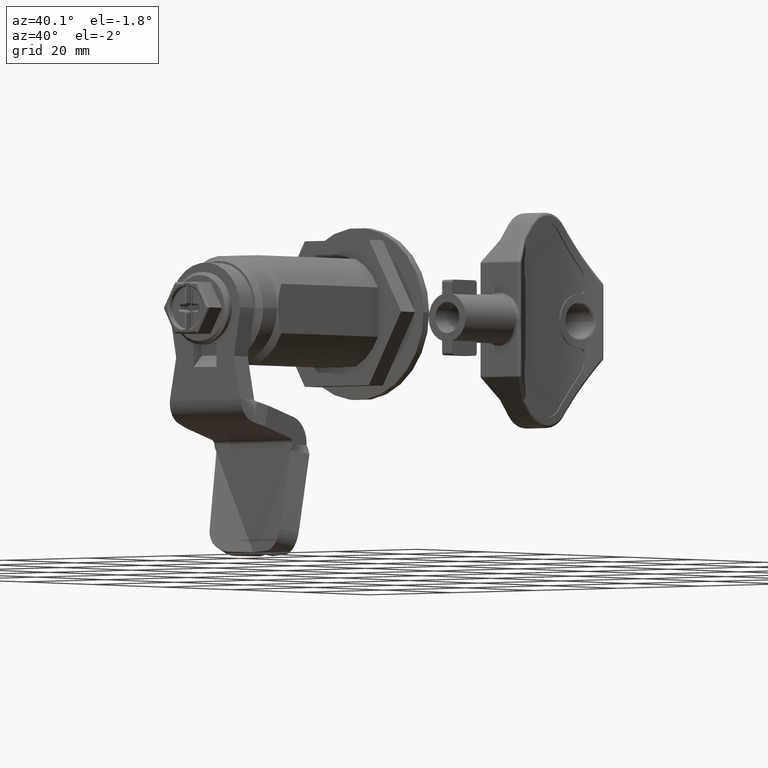
[diagram: clean part render]
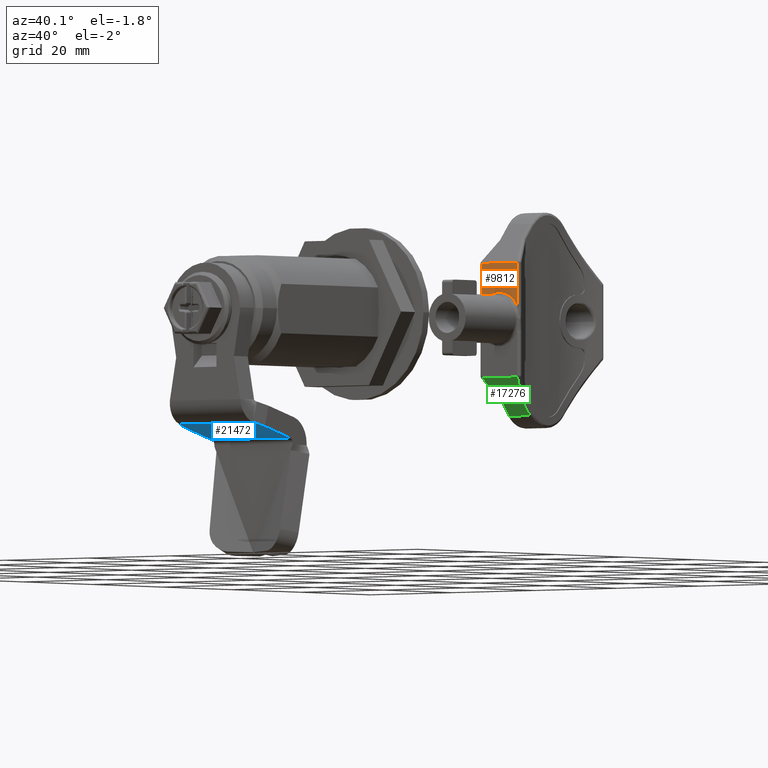
[diagram: same view with three faces highlighted in distinct colors, each labeled with its STEP entity id]
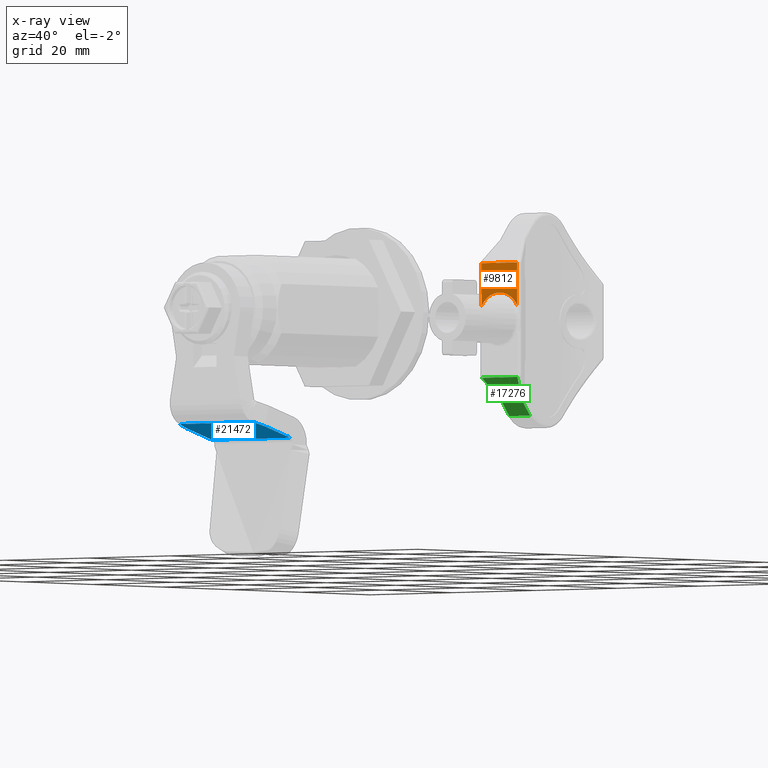
[diagram: x-ray of the same camera — body ghosted, the three highlighted faces saturated]
A machine part, auxiliary view with three faces highlighted in distinct colors.
The next image is the same camera in x-ray (body ghosted, the three faces saturated) — at least one of them is partly hidden behind the body in this view.
Their STEP definitions:

[orange] entity #9812 — the highlighted planar face has unit normal (0, 1, 0).
#447 = ORIENTED_EDGE ( 'NONE', *, *, #18263, .F. ) ;
#849 = CARTESIAN_POINT ( 'NONE',  ( 11.68431494625915867, 90.46760989057965219, 6.226313388720265962 ) ) ;
#1070 = CARTESIAN_POINT ( 'NONE',  ( 14.30160485356757682, 90.46761590836968026, 4.038324185251780385 ) ) ;
#1113 = CARTESIAN_POINT ( 'NONE',  ( 12.94196387228142697, 90.46760989057966640, 5.549108788813547299 ) ) ;
#1248 = CARTESIAN_POINT ( 'NONE',  ( 12.09002494346922063, 90.46760989057962377, 6.060991648164399948 ) ) ;
#1369 = CARTESIAN_POINT ( 'NONE',  ( 13.44264506776045742, 90.46760989057965219, 5.120632281888396697 ) ) ;
#1764 = DIRECTION ( 'NONE',  ( -2.327695422764130721E-15, -1.224632499947480388E-16, 1.000000000000000000 ) ) ;
#3087 = DIRECTION ( 'NONE',  ( 1.000000000000000000, -3.462277103873345949E-22, 2.327695422764130721E-15 ) ) ;
#3273 = CARTESIAN_POINT ( 'NONE',  ( 10.20777526145559833, 90.46760989057965219, 6.499977712199124014 ) ) ;
#3539 = CARTESIAN_POINT ( 'NONE',  ( 6.391117997786375682, 90.46760989057965219, 4.967491468924532860 ) ) ;
#5173 = CARTESIAN_POINT ( 'NONE',  ( 12.66688050575999114, 90.46760989057960956, 5.731269799322173952 ) ) ;
#5303 = CARTESIAN_POINT ( 'NONE',  ( 8.362221852326992888, 90.46760989057966640, 6.228687451887533477 ) ) ;
#5629 = ORIENTED_EDGE ( 'NONE', *, *, #6614, .F. ) ;
#5961 = CARTESIAN_POINT ( 'NONE',  ( 5.686060587660782595, 90.46760989057969482, -22.50000000000000355 ) ) ;
#6614 = EDGE_CURVE ( 'NONE', #11337, #11602, #21394, .T. ) ;
#7042 = FACE_OUTER_BOUND ( 'NONE', #24486, .T. ) ;
#7045 = CARTESIAN_POINT ( 'NONE',  ( 6.426871535496623267, 90.46760989057963798, 5.004270630835435441 ) ) ;
#7175 = CARTESIAN_POINT ( 'NONE',  ( 5.973780260749663285, 90.46760989057965219, 4.486607665623752794 ) ) ;
#7705 = VERTEX_POINT ( 'NONE', #15466 ) ;
#7716 = VERTEX_POINT ( 'NONE', #1070 ) ;
#8168 = CARTESIAN_POINT ( 'NONE',  ( 14.30160486092668570, 90.46760989057969482, 11.97943889045009591 ) ) ;
#8714 = CARTESIAN_POINT ( 'NONE',  ( 14.30160486092677807, 90.46760989057969482, -22.49999999999992539 ) ) ;
#9055 = CARTESIAN_POINT ( 'NONE',  ( 7.705377674659893650, 90.46760989057962377, 5.951044967326062363 ) ) ;
#9094 = LINE ( 'NONE', #8714, #12963 ) ;
#9317 = CARTESIAN_POINT ( 'NONE',  ( 8.001969613871144915, 90.46760989057962377, 6.095567325610470100 ) ) ;
#9453 = CARTESIAN_POINT ( 'NONE',  ( 6.210621589031656953, 90.46760989057965219, 4.772352177383944571 ) ) ;
#9454 = B_SPLINE_CURVE_WITH_KNOTS ( 'NONE', 3,
 ( #17528, #23722, #7175, #9453, #19288, #3539, #7045, #21840, #15379, #9055, #9317, #5303, #23996, #17254, #21702, #23593, #25747, #3273, #9586, #13218, #21566, #17650, #11457, #849, #1248, #5173, #1113, #25475, #26006, #1369, #19684, #19545, #13746, #25871 ),
 .UNSPECIFIED., .F., .F.,
 ( 4, 1, 1, 2, 2, 2, 1, 1, 2, 2, 2, 1, 1, 2, 2, 2, 1, 1, 2, 2, 4 ),
 ( 0.0000000000000000000, 0.06249999999999902855, 0.09374999999999844569, 0.1093749999999981543, 0.1249999999999978489, 0.2499999999999960032, 0.3124999999999952260, 0.3437499999999948375, 0.3593749999999948375, 0.3749999999999948930, 0.4999999999999954481, 0.5624999999999958922, 0.5937499999999964473, 0.6093749999999967804, 0.6249999999999968914, 0.7499999999999982236, 0.8124999999999991118, 0.8437499999999993339, 0.8593749999999994449, 0.8749999999999994449, 1.000000000000000000 ),
 .UNSPECIFIED. ) ;
#9586 = CARTESIAN_POINT ( 'NONE',  ( 10.52596634781067131, 90.46760989057960956, 6.479729507598323224 ) ) ;
#9812 = ADVANCED_FACE ( 'NONE', ( #7042 ), #15375, .F. ) ;
#10907 = EDGE_CURVE ( 'NONE', #7705, #7716, #9454, .T. ) ;
#11148 = CARTESIAN_POINT ( 'NONE',  ( 4.850975581436654416, 90.46760989057969482, 11.97943889045001775 ) ) ;
#11337 = VERTEX_POINT ( 'NONE', #20449 ) ;
#11457 = CARTESIAN_POINT ( 'NONE',  ( 11.20212952403401196, 90.46760989057965219, 6.352127427658723846 ) ) ;
#11602 = VERTEX_POINT ( 'NONE', #8168 ) ;
#12963 = VECTOR ( 'NONE', #14890, 1000.000000000000000 ) ;
#13012 = VECTOR ( 'NONE', #1764, 1000.000000000000000 ) ;
#13214 = DIRECTION ( 'NONE',  ( -2.327695422764130721E-15, -1.224632499947480388E-16, 1.000000000000000000 ) ) ;
#13218 = CARTESIAN_POINT ( 'NONE',  ( 10.89242433167403590, 90.46760989057963798, 6.420730749656636149 ) ) ;
#13746 = CARTESIAN_POINT ( 'NONE',  ( 14.08439146608704995, 90.46760989057968061, 4.406782454919608405 ) ) ;
#14890 = DIRECTION ( 'NONE',  ( 2.327695422764130721E-15, 1.224632499947480388E-16, -1.000000000000000000 ) ) ;
#15237 = DIRECTION ( 'NONE',  ( 3.462277103172841594E-22, 1.000000000000000000, 1.224632499947480388E-16 ) ) ;
#15375 = PLANE ( 'NONE',  #19228 ) ;
#15379 = CARTESIAN_POINT ( 'NONE',  ( 7.128454721238591141, 90.46760989057965219, 5.621441060218487884 ) ) ;
#15466 = CARTESIAN_POINT ( 'NONE',  ( 5.686063088423678913, 90.46761503197578236, 4.038326747129302952 ) ) ;
#17254 = CARTESIAN_POINT ( 'NONE',  ( 8.625303957400044297, 90.46760989057960956, 6.309408543055338825 ) ) ;
#17523 = CARTESIAN_POINT ( 'NONE',  ( 4.850975581436748563, 90.46760989057963798, -22.50000000000000355 ) ) ;
#17528 = CARTESIAN_POINT ( 'NONE',  ( 5.686063088423678913, 90.46761503197578236, 4.038326747129302952 ) ) ;
#17650 = CARTESIAN_POINT ( 'NONE',  ( 11.15225136410743012, 90.46760989057965219, 6.364269982227827249 ) ) ;
#18263 = EDGE_CURVE ( 'NONE', #7705, #11337, #21948, .T. ) ;
#19228 = AXIS2_PLACEMENT_3D ( 'NONE', #17523, #15237, #13214 ) ;
#19288 = CARTESIAN_POINT ( 'NONE',  ( 6.318120090890809948, 90.46760989057963798, 4.890068500389142869 ) ) ;
#19545 = CARTESIAN_POINT ( 'NONE',  ( 13.82437355441803284, 90.46760989057965219, 4.741784238782592809 ) ) ;
#19684 = CARTESIAN_POINT ( 'NONE',  ( 13.48369832235735011, 90.46760989057965219, 5.081026253022776551 ) ) ;
#20449 = CARTESIAN_POINT ( 'NONE',  ( 5.686060587660689336, 90.46760989057969482, 11.97943889045001953 ) ) ;
#20930 = VECTOR ( 'NONE', #3087, 1000.000000000000000 ) ;
#21213 = ORIENTED_EDGE ( 'NONE', *, *, #10907, .T. ) ;
#21394 = LINE ( 'NONE', #11148, #20930 ) ;
#21436 = ORIENTED_EDGE ( 'NONE', *, *, #26309, .F. ) ;
#21566 = CARTESIAN_POINT ( 'NONE',  ( 11.04845669256885721, 90.46760989057963798, 6.387865027844324750 ) ) ;
#21702 = CARTESIAN_POINT ( 'NONE',  ( 8.680203947695259714, 90.46760989057963798, 6.324654824810351350 ) ) ;
#21840 = CARTESIAN_POINT ( 'NONE',  ( 6.780056084522220416, 90.46760989057960956, 5.355828058636858735 ) ) ;
#21948 = LINE ( 'NONE', #5961, #13012 ) ;
#23593 = CARTESIAN_POINT ( 'NONE',  ( 9.146005091739745296, 90.46760989057963798, 6.446093854670067458 ) ) ;
#23722 = CARTESIAN_POINT ( 'NONE',  ( 5.794753709746856885, 90.46760989057966640, 4.222701355975442716 ) ) ;
#23996 = CARTESIAN_POINT ( 'NONE',  ( 8.519664592245794310, 90.46760989057965219, 6.278134086351685461 ) ) ;
#24486 = EDGE_LOOP ( 'NONE', ( #21436, #5629, #447, #21213 ) ) ;
#25475 = CARTESIAN_POINT ( 'NONE',  ( 13.23954174096450842, 90.46760989057962377, 5.306312459233645029 ) ) ;
#25747 = CARTESIAN_POINT ( 'NONE',  ( 9.565947431353935215, 90.46760989057965219, 6.500044575601775065 ) ) ;
#25871 = CARTESIAN_POINT ( 'NONE',  ( 14.30160485356757682, 90.46761590836968026, 4.038324185251780385 ) ) ;
#26006 = CARTESIAN_POINT ( 'NONE',  ( 13.36207095777327503, 90.46760989057963798, 5.195769357130872734 ) ) ;
#26309 = EDGE_CURVE ( 'NONE', #11602, #7716, #9094, .T. ) ;

[blue] entity #21472 — the highlighted planar face has unit normal (0, -0.2588, -0.9659).
#1719 = CARTESIAN_POINT ( 'NONE',  ( 19.49383272429362535, 11.62519137588309626, -20.47728645089577881 ) ) ;
#2006 = CARTESIAN_POINT ( 'NONE',  ( 0.4938327242937096684, -9.625176802480012839, -14.78326745864001701 ) ) ;
#2561 = CARTESIAN_POINT ( 'NONE',  ( 18.95349915549838471, 8.911196201548809981, -19.75007363567146967 ) ) ;
#3351 = CARTESIAN_POINT ( 'NONE',  ( 9.993832724293662650, -9.625176802480016391, -14.78326745864001346 ) ) ;
#4095 = ORIENTED_EDGE ( 'NONE', *, *, #4387, .F. ) ;
#4387 = EDGE_CURVE ( 'NONE', #10294, #25728, #12063, .T. ) ;
#4847 = PLANE ( 'NONE',  #26337 ) ;
#6128 = CARTESIAN_POINT ( 'NONE',  ( 19.49383272429362890, 18.90852850364103332, -22.42885075248121751 ) ) ;
#6338 = EDGE_LOOP ( 'NONE', ( #7285, #10910, #23370, #10460, #4095, #12309 ) ) ;
#6343 = LINE ( 'NONE', #10622, #25487 ) ;
#7285 = ORIENTED_EDGE ( 'NONE', *, *, #13803, .T. ) ;
#7371 = DIRECTION ( 'NONE',  ( 2.881877549567474122E-16, -0.2588190451024932615, -0.9659258262890756397 ) ) ;
#8175 = CARTESIAN_POINT ( 'NONE',  ( 0.4938327242937166073, 8.911196201548490237, -19.75007363567181073 ) ) ;
#8199 = CARTESIAN_POINT ( 'NONE',  ( 0.4938327242937183836, 11.62519137588314422, -20.47728645089581434 ) ) ;
#8602 = EDGE_CURVE ( 'NONE', #10294, #11378, #24396, .T. ) ;
#9525 = VERTEX_POINT ( 'NONE', #6128 ) ;
#9923 = DIRECTION ( 'NONE',  ( -0.1888473936499765471, -0.9485453887210086865, 0.2541619708920305198 ) ) ;
#10196 = EDGE_CURVE ( 'NONE', #20834, #9525, #24800, .T. ) ;
#10294 = VERTEX_POINT ( 'NONE', #13052 ) ;
#10460 = ORIENTED_EDGE ( 'NONE', *, *, #24710, .T. ) ;
#10462 = VECTOR ( 'NONE', #9923, 1000.000000000000000 ) ;
#10622 = CARTESIAN_POINT ( 'NONE',  ( 19.49383272429361469, -9.625176802480019944, -14.78326745864000991 ) ) ;
#10910 = ORIENTED_EDGE ( 'NONE', *, *, #10196, .T. ) ;
#11378 = VERTEX_POINT ( 'NONE', #8199 ) ;
#12063 = LINE ( 'NONE', #8175, #20815 ) ;
#12222 = LINE ( 'NONE', #2006, #16246 ) ;
#12309 = ORIENTED_EDGE ( 'NONE', *, *, #8602, .T. ) ;
#13052 = CARTESIAN_POINT ( 'NONE',  ( 1.034166293088620625, 8.911196201551820906, -19.75007363567247509 ) ) ;
#13208 = VERTEX_POINT ( 'NONE', #24118 ) ;
#13803 = EDGE_CURVE ( 'NONE', #11378, #20834, #12222, .T. ) ;
#14556 = DIRECTION ( 'NONE',  ( 1.000000000000000000, -3.317293887944513556E-16, 3.872405400257100208E-16 ) ) ;
#15804 = VECTOR ( 'NONE', #19939, 1000.000000000000114 ) ;
#16246 = VECTOR ( 'NONE', #26630, 1000.000000000000114 ) ;
#18267 = DIRECTION ( 'NONE',  ( 1.000000000000000000, -3.317293887944513556E-16, 3.872405400257100208E-16 ) ) ;
#18835 = DIRECTION ( 'NONE',  ( -4.206512107700798240E-16, -0.9659258262890756397, 0.2588190451024932615 ) ) ;
#19939 = DIRECTION ( 'NONE',  ( -0.1888473936499756867, 0.9485453887210087975, -0.2541619708920308529 ) ) ;
#20163 = LINE ( 'NONE', #1719, #10462 ) ;
#20527 = VECTOR ( 'NONE', #14556, 1000.000000000000000 ) ;
#20581 = CARTESIAN_POINT ( 'NONE',  ( 0.4938327242937218253, 18.90852850364104043, -22.42885075248122462 ) ) ;
#20613 = CARTESIAN_POINT ( 'NONE',  ( 9.993832724293675085, 18.90852850363959448, -22.42885075248152660 ) ) ;
#20815 = VECTOR ( 'NONE', #18267, 1000.000000000000000 ) ;
#20834 = VERTEX_POINT ( 'NONE', #20581 ) ;
#21472 = ADVANCED_FACE ( 'NONE', ( #23534 ), #4847, .T. ) ;
#21832 = CARTESIAN_POINT ( 'NONE',  ( 1.034166293088620625, 8.911196201548705176, -19.75007363567100427 ) ) ;
#23370 = ORIENTED_EDGE ( 'NONE', *, *, #24537, .T. ) ;
#23534 = FACE_OUTER_BOUND ( 'NONE', #6338, .T. ) ;
#24118 = CARTESIAN_POINT ( 'NONE',  ( 19.49383272429373548, 11.62519137588310159, -20.47728645089577881 ) ) ;
#24396 = LINE ( 'NONE', #21832, #15804 ) ;
#24537 = EDGE_CURVE ( 'NONE', #9525, #13208, #6343, .T. ) ;
#24710 = EDGE_CURVE ( 'NONE', #13208, #25728, #20163, .T. ) ;
#24800 = LINE ( 'NONE', #20613, #20527 ) ;
#25487 = VECTOR ( 'NONE', #18835, 1000.000000000000114 ) ;
#25689 = DIRECTION ( 'NONE',  ( 4.206512107700798240E-16, 0.9659258262890756397, -0.2588190451024932615 ) ) ;
#25728 = VERTEX_POINT ( 'NONE', #2561 ) ;
#26337 = AXIS2_PLACEMENT_3D ( 'NONE', #3351, #7371, #25689 ) ;
#26630 = DIRECTION ( 'NONE',  ( 4.206512107700798240E-16, 0.9659258262890756397, -0.2588190451024932615 ) ) ;

[green] entity #17276 — the highlighted planar face has unit normal (-0, 0.7732, 0.6341).
#65 = CARTESIAN_POINT ( 'NONE',  ( 7.493832724293708836, 96.32815509393418552, -16.30466282210139184 ) ) ;
#740 = DIRECTION ( 'NONE',  ( 1.799873168592088012E-15, 0.6341104703502870032, -0.7732424661075838479 ) ) ;
#2182 = DIRECTION ( 'NONE',  ( 1.000000000000000000, -3.462277103873345949E-22, 2.327695422764130721E-15 ) ) ;
#2592 = CARTESIAN_POINT ( 'NONE',  ( 12.49383272429363778, 93.95549664590643602, -13.41141258359337307 ) ) ;
#2999 = VERTEX_POINT ( 'NONE', #5627 ) ;
#3225 = FACE_OUTER_BOUND ( 'NONE', #5241, .T. ) ;
#3353 = ORIENTED_EDGE ( 'NONE', *, *, #23066, .F. ) ;
#3772 = LINE ( 'NONE', #7388, #5508 ) ;
#4227 = CARTESIAN_POINT ( 'NONE',  ( 18.74859956786572468, 90.58098865752320705, -9.296494125622118077 ) ) ;
#5241 = EDGE_LOOP ( 'NONE', ( #19723, #21344, #5808, #20344, #3353, #11133 ) ) ;
#5445 = EDGE_CURVE ( 'NONE', #18250, #2999, #14536, .T. ) ;
#5508 = VECTOR ( 'NONE', #20180, 1000.000000000000114 ) ;
#5627 = CARTESIAN_POINT ( 'NONE',  ( 5.686060587659905963, 90.58098865752469919, -9.296494125623759430 ) ) ;
#5808 = ORIENTED_EDGE ( 'NONE', *, *, #18775, .F. ) ;
#6419 = CARTESIAN_POINT ( 'NONE',  ( 12.49383272429363778, 93.95549664590788552, -13.41141258359514943 ) ) ;
#6676 = CARTESIAN_POINT ( 'NONE',  ( 14.30160486092668037, 90.58098865752454287, -9.296494125623571136 ) ) ;
#7381 = DIRECTION ( 'NONE',  ( -1.799873168592088012E-15, -0.6341104703502870032, 0.7732424661075838479 ) ) ;
#7388 = CARTESIAN_POINT ( 'NONE',  ( 12.49383272429224867, 93.95549664590760131, -13.41141258359481547 ) ) ;
#7898 = EDGE_CURVE ( 'NONE', #14599, #25298, #3772, .T. ) ;
#7950 = CARTESIAN_POINT ( 'NONE',  ( 7.493832724293632452, 93.95549664590788552, -13.41141258359516009 ) ) ;
#9265 = VECTOR ( 'NONE', #19638, 1000.000000000000000 ) ;
#9538 = LINE ( 'NONE', #9939, #9265 ) ;
#9568 = CARTESIAN_POINT ( 'NONE',  ( 7.493832724293632452, 93.95549664590943451, -13.41141258359393795 ) ) ;
#9939 = CARTESIAN_POINT ( 'NONE',  ( 7.493832724293708836, 96.32815509393464026, -16.30466282209983575 ) ) ;
#9994 = LINE ( 'NONE', #4227, #11675 ) ;
#10252 = LINE ( 'NONE', #20216, #25877 ) ;
#11133 = ORIENTED_EDGE ( 'NONE', *, *, #5445, .F. ) ;
#11663 = CARTESIAN_POINT ( 'NONE',  ( 18.09383272429370493, 96.32815509393464026, -16.30466282209997786 ) ) ;
#11675 = VECTOR ( 'NONE', #2182, 1000.000000000000000 ) ;
#12427 = VECTOR ( 'NONE', #14257, 1000.000000000000000 ) ;
#14257 = DIRECTION ( 'NONE',  ( -0.3216498280600021964, -0.6004130123787011497, 0.7321513523004001822 ) ) ;
#14536 = LINE ( 'NONE', #7950, #12427 ) ;
#14599 = VERTEX_POINT ( 'NONE', #6676 ) ;
#14978 = EDGE_CURVE ( 'NONE', #23797, #18250, #9538, .T. ) ;
#15001 = LINE ( 'NONE', #6419, #15611 ) ;
#15244 = CARTESIAN_POINT ( 'NONE',  ( 12.49383272429371416, 96.32815509393429920, -16.30466282210209883 ) ) ;
#15611 = VECTOR ( 'NONE', #740, 1000.000000000000000 ) ;
#16308 = DIRECTION ( 'NONE',  ( -1.000000000000000000, 3.462277103873345949E-22, -2.327695422764130721E-15 ) ) ;
#16651 = AXIS2_PLACEMENT_3D ( 'NONE', #11663, #26221, #7381 ) ;
#17276 = ADVANCED_FACE ( 'NONE', ( #3225 ), #23670, .F. ) ;
#18250 = VERTEX_POINT ( 'NONE', #9568 ) ;
#18775 = EDGE_CURVE ( 'NONE', #25298, #26620, #15001, .T. ) ;
#19638 = DIRECTION ( 'NONE',  ( -1.799873168592088012E-15, -0.6341104703502870032, 0.7732424661075838479 ) ) ;
#19723 = ORIENTED_EDGE ( 'NONE', *, *, #14978, .F. ) ;
#20180 = DIRECTION ( 'NONE',  ( -0.3216498280599987547, 0.6004130123787011497, -0.7321513523004016255 ) ) ;
#20216 = CARTESIAN_POINT ( 'NONE',  ( 18.09383272429370493, 96.32815509393464026, -16.30466282209997786 ) ) ;
#20326 = EDGE_CURVE ( 'NONE', #26620, #23797, #10252, .T. ) ;
#20344 = ORIENTED_EDGE ( 'NONE', *, *, #7898, .F. ) ;
#21344 = ORIENTED_EDGE ( 'NONE', *, *, #20326, .F. ) ;
#23066 = EDGE_CURVE ( 'NONE', #2999, #14599, #9994, .T. ) ;
#23670 = PLANE ( 'NONE',  #16651 ) ;
#23797 = VERTEX_POINT ( 'NONE', #65 ) ;
#25298 = VERTEX_POINT ( 'NONE', #2592 ) ;
#25877 = VECTOR ( 'NONE', #16308, 1000.000000000000000 ) ;
#26221 = DIRECTION ( 'NONE',  ( -1.476015771643205197E-15, 0.7732424661075838479, 0.6341104703502870032 ) ) ;
#26620 = VERTEX_POINT ( 'NONE', #15244 ) ;